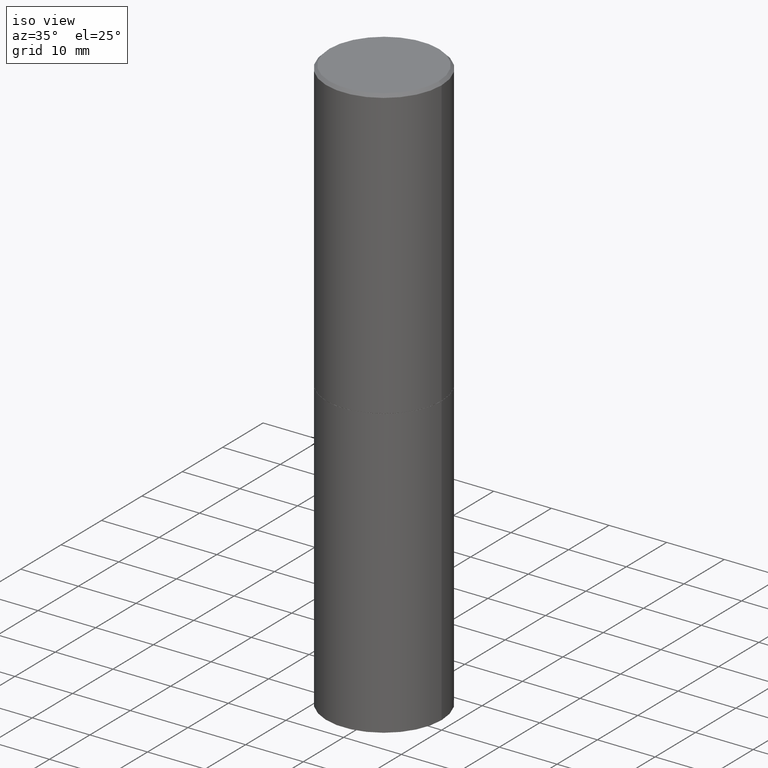
[diagram: clean part render]
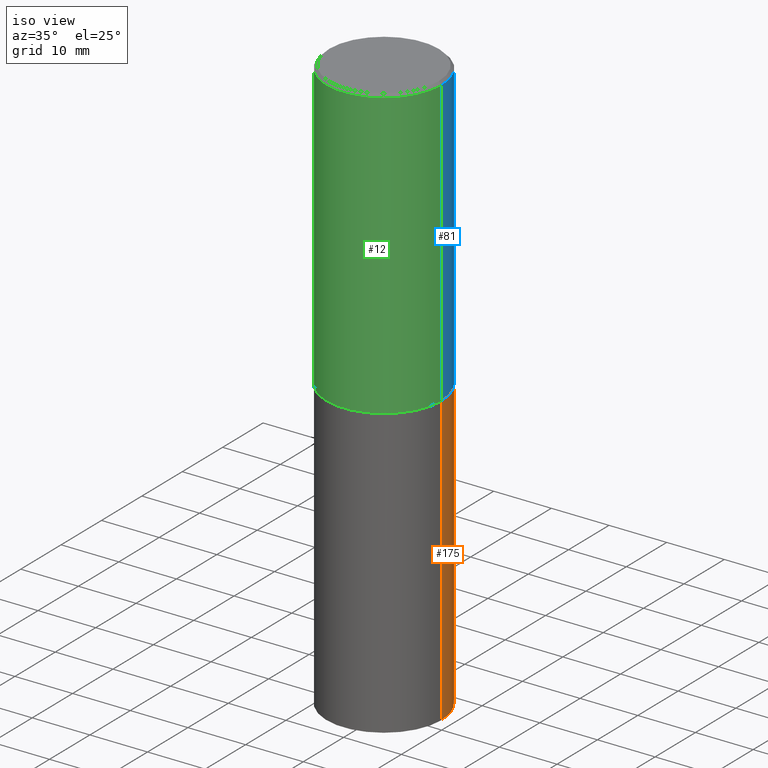
[diagram: same view with three faces highlighted in distinct colors, each labeled with its STEP entity id]
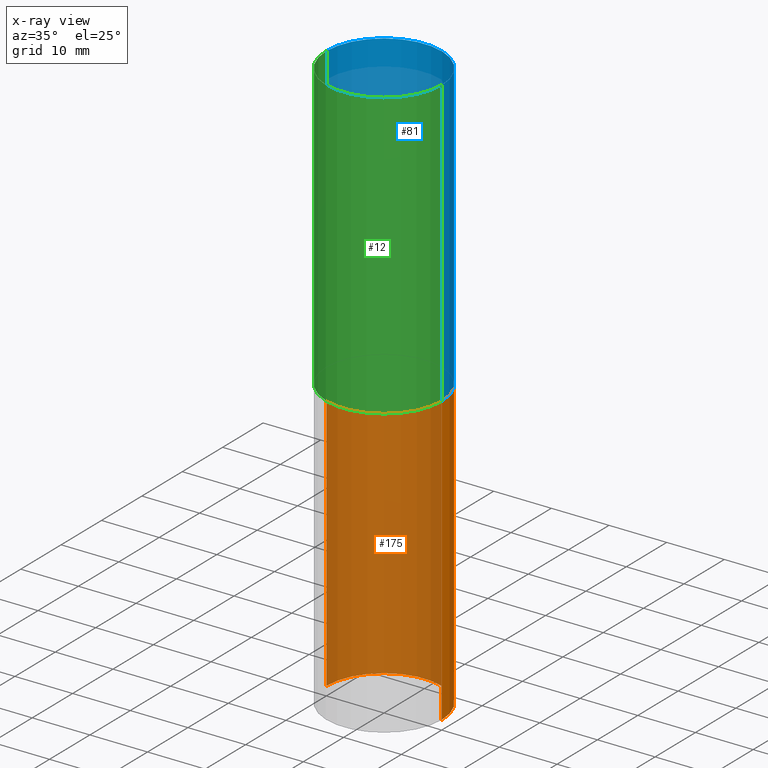
[diagram: x-ray of the same camera — body ghosted, the three highlighted faces saturated]
A machine part, iso view with three faces highlighted in distinct colors.
The next image is the same camera in x-ray (body ghosted, the three faces saturated) — at least one of them is partly hidden behind the body in this view.
Their STEP definitions:

[orange] entity #175 — the highlighted cylindrical surface (partial cylindrical patch) has radius 10 mm, axis along (-0, 0, 1).
#18 = ORIENTED_EDGE ( 'NONE', *, *, #334, .T. ) ;
#28 = AXIS2_PLACEMENT_3D ( 'NONE', #257, #86, #174 ) ;
#36 = CARTESIAN_POINT ( 'NONE',  ( 0.3937000000000000499, -9.622173421717814924E-15, -1.968500000000000139 ) ) ;
#45 = DIRECTION ( 'NONE',  ( -2.445468806185136597E-29, 3.491481338843145583E-15, 1.000000000000000000 ) ) ;
#55 = EDGE_LOOP ( 'NONE', ( #246, #18, #259, #179 ) ) ;
#62 = VERTEX_POINT ( 'NONE', #313 ) ;
#69 = DIRECTION ( 'NONE',  ( -2.445468806185136877E-29, 3.491481338843145188E-15, 1.000000000000000000 ) ) ;
#73 = CIRCLE ( 'NONE', #28, 0.3937000000000000499 ) ;
#86 = DIRECTION ( 'NONE',  ( -2.445468806185136597E-29, 3.491481338843145583E-15, 1.000000000000000000 ) ) ;
#91 = CARTESIAN_POINT ( 'NONE',  ( -0.3937000000000000499, 2.797406750687514786E-15, -1.936584745033356735E-29 ) ) ;
#93 = VERTEX_POINT ( 'NONE', #197 ) ;
#94 = LINE ( 'NONE', #209, #253 ) ;
#95 = AXIS2_PLACEMENT_3D ( 'NONE', #271, #102, #206 ) ;
#102 = DIRECTION ( 'NONE',  ( -2.445468806185136597E-29, 3.491481338843145583E-15, 1.000000000000000000 ) ) ;
#107 = EDGE_CURVE ( 'NONE', #294, #62, #73, .T. ) ;
#122 = VERTEX_POINT ( 'NONE', #36 ) ;
#174 = DIRECTION ( 'NONE',  ( 1.000000000000000000, -6.982962677686267499E-15, 0.000000000000000000 ) ) ;
#175 = ADVANCED_FACE ( 'NONE', ( #177 ), #335, .T. ) ;
#177 = FACE_OUTER_BOUND ( 'NONE', #55, .T. ) ;
#179 = ORIENTED_EDGE ( 'NONE', *, *, #269, .F. ) ;
#197 = CARTESIAN_POINT ( 'NONE',  ( -0.3937000000000000499, -7.512064772581583563E-15, -1.968500000000000139 ) ) ;
#205 = DIRECTION ( 'NONE',  ( -2.445468806185136877E-29, 3.491481338843145188E-15, 1.000000000000000000 ) ) ;
#206 = DIRECTION ( 'NONE',  ( 1.000000000000000000, -6.982962677686265133E-15, 0.000000000000000000 ) ) ;
#209 = CARTESIAN_POINT ( 'NONE',  ( 0.3937000000000000499, -2.749192406205083217E-15, 1.919750796630860172E-29 ) ) ;
#213 = CARTESIAN_POINT ( 'NONE',  ( 0.000000000000000000, 0.000000000000000000, 0.000000000000000000 ) ) ;
#242 = DIRECTION ( 'NONE',  ( 1.000000000000000000, -6.982962677686265922E-15, 4.876176775795935793E-29 ) ) ;
#246 = ORIENTED_EDGE ( 'NONE', *, *, #107, .T. ) ;
#248 = AXIS2_PLACEMENT_3D ( 'NONE', #213, #45, #242 ) ;
#253 = VECTOR ( 'NONE', #69, 39.37007874015748143 ) ;
#257 = CARTESIAN_POINT ( 'NONE',  ( 9.627810689950883669E-29, -1.374596203102546341E-14, -3.937000000000000277 ) ) ;
#259 = ORIENTED_EDGE ( 'NONE', *, *, #277, .F. ) ;
#269 = EDGE_CURVE ( 'NONE', #294, #122, #94, .T. ) ;
#271 = CARTESIAN_POINT ( 'NONE',  ( 4.813905344975441835E-29, -6.872981015512731707E-15, -1.968500000000000139 ) ) ;
#277 = EDGE_CURVE ( 'NONE', #122, #93, #309, .T. ) ;
#288 = CARTESIAN_POINT ( 'NONE',  ( 0.3937000000000000499, -1.649515443723054663E-14, -3.937000000000000277 ) ) ;
#294 = VERTEX_POINT ( 'NONE', #288 ) ;
#309 = CIRCLE ( 'NONE', #95, 0.3937000000000000499 ) ;
#313 = CARTESIAN_POINT ( 'NONE',  ( -0.3937000000000000499, -7.512064772581583563E-15, -3.937000000000000277 ) ) ;
#317 = VECTOR ( 'NONE', #205, 39.37007874015748143 ) ;
#334 = EDGE_CURVE ( 'NONE', #62, #93, #350, .T. ) ;
#335 = CYLINDRICAL_SURFACE ( 'NONE', #248, 0.3937000000000000499 ) ;
#350 = LINE ( 'NONE', #91, #317 ) ;

[blue] entity #81 — the highlighted cylindrical surface (partial cylindrical patch) has radius 10 mm, axis along (-0, 0, 1).
#3 = ORIENTED_EDGE ( 'NONE', *, *, #325, .F. ) ;
#10 = LINE ( 'NONE', #59, #39 ) ;
#14 = ORIENTED_EDGE ( 'NONE', *, *, #145, .T. ) ;
#26 = ORIENTED_EDGE ( 'NONE', *, *, #322, .F. ) ;
#32 = ORIENTED_EDGE ( 'NONE', *, *, #211, .T. ) ;
#39 = VECTOR ( 'NONE', #290, 39.37007874015748143 ) ;
#50 = DIRECTION ( 'NONE',  ( 1.000000000000000000, -6.982962677686265922E-15, 0.000000000000000000 ) ) ;
#56 = DIRECTION ( 'NONE',  ( -2.445468806185136597E-29, 3.491481338843145583E-15, 1.000000000000000000 ) ) ;
#59 = CARTESIAN_POINT ( 'NONE',  ( 0.3936999999999999389, -2.749192406205082822E-15, 1.919750796630859611E-29 ) ) ;
#80 = AXIS2_PLACEMENT_3D ( 'NONE', #303, #297, #50 ) ;
#81 = ADVANCED_FACE ( 'NONE', ( #195 ), #85, .T. ) ;
#85 = CYLINDRICAL_SURFACE ( 'NONE', #310, 0.3936999999999999389 ) ;
#90 = CIRCLE ( 'NONE', #80, 0.3937000000000001609 ) ;
#96 = AXIS2_PLACEMENT_3D ( 'NONE', #356, #142, #230 ) ;
#97 = VERTEX_POINT ( 'NONE', #319 ) ;
#116 = VECTOR ( 'NONE', #203, 39.37007874015748143 ) ;
#142 = DIRECTION ( 'NONE',  ( -2.445468806185136597E-29, 3.491481338843145583E-15, 1.000000000000000000 ) ) ;
#145 = EDGE_CURVE ( 'NONE', #291, #276, #199, .T. ) ;
#172 = CIRCLE ( 'NONE', #96, 0.3936999999999997724 ) ;
#188 = VERTEX_POINT ( 'NONE', #338 ) ;
#195 = FACE_OUTER_BOUND ( 'NONE', #326, .T. ) ;
#199 = LINE ( 'NONE', #354, #116 ) ;
#203 = DIRECTION ( 'NONE',  ( -2.445468806185136877E-29, 3.491481338843145188E-15, 1.000000000000000000 ) ) ;
#211 = EDGE_CURVE ( 'NONE', #188, #291, #90, .T. ) ;
#230 = DIRECTION ( 'NONE',  ( 1.000000000000000000, -6.982962677686266711E-15, 0.000000000000000000 ) ) ;
#234 = CARTESIAN_POINT ( 'NONE',  ( -0.3937000000000001609, -6.722528297878588461E-16, -1.967500000000000027 ) ) ;
#276 = VERTEX_POINT ( 'NONE', #336 ) ;
#281 = DIRECTION ( 'NONE',  ( 1.000000000000000000, -6.982962677686266711E-15, 4.876176775795935793E-29 ) ) ;
#290 = DIRECTION ( 'NONE',  ( -2.445468806185136877E-29, 3.491481338843145188E-15, 1.000000000000000000 ) ) ;
#291 = VERTEX_POINT ( 'NONE', #234 ) ;
#297 = DIRECTION ( 'NONE',  ( -2.445468806185136597E-29, 3.491481338843145583E-15, 1.000000000000000000 ) ) ;
#303 = CARTESIAN_POINT ( 'NONE',  ( 4.811459876169256232E-29, -6.869489534173888700E-15, -1.967500000000000027 ) ) ;
#310 = AXIS2_PLACEMENT_3D ( 'NONE', #315, #56, #281 ) ;
#315 = CARTESIAN_POINT ( 'NONE',  ( 0.000000000000000000, 0.000000000000000000, 0.000000000000000000 ) ) ;
#319 = CARTESIAN_POINT ( 'NONE',  ( 0.3936999999999997724, -2.770807688499513762E-15, -0.02000000000000008715 ) ) ;
#322 = EDGE_CURVE ( 'NONE', #188, #97, #10, .T. ) ;
#325 = EDGE_CURVE ( 'NONE', #97, #276, #172, .T. ) ;
#326 = EDGE_LOOP ( 'NONE', ( #32, #14, #3, #26 ) ) ;
#336 = CARTESIAN_POINT ( 'NONE',  ( -0.3936999999999997724, 2.679362779428217946E-15, -0.02000000000000008715 ) ) ;
#338 = CARTESIAN_POINT ( 'NONE',  ( 0.3937000000000001609, -9.618681940378971917E-15, -1.967500000000000027 ) ) ;
#354 = CARTESIAN_POINT ( 'NONE',  ( -0.3936999999999999389, 2.797406750687513998E-15, -1.936584745033356455E-29 ) ) ;
#356 = CARTESIAN_POINT ( 'NONE',  ( 4.890937612370294178E-31, -6.982962677686321191E-17, -0.02000000000000008715 ) ) ;

[green] entity #12 — the highlighted cylindrical surface (partial cylindrical patch) has radius 10 mm, axis along (-0, 0, 1).
#7 = CYLINDRICAL_SURFACE ( 'NONE', #267, 0.3936999999999999389 ) ;
#10 = LINE ( 'NONE', #59, #39 ) ;
#11 = DIRECTION ( 'NONE',  ( -2.445468806185136597E-29, 3.491481338843145583E-15, 1.000000000000000000 ) ) ;
#12 = ADVANCED_FACE ( 'NONE', ( #140 ), #7, .T. ) ;
#19 = DIRECTION ( 'NONE',  ( -2.445468806185136597E-29, 3.491481338843145583E-15, 1.000000000000000000 ) ) ;
#39 = VECTOR ( 'NONE', #290, 39.37007874015748143 ) ;
#59 = CARTESIAN_POINT ( 'NONE',  ( 0.3936999999999999389, -2.749192406205082822E-15, 1.919750796630859611E-29 ) ) ;
#84 = ORIENTED_EDGE ( 'NONE', *, *, #231, .F. ) ;
#97 = VERTEX_POINT ( 'NONE', #319 ) ;
#108 = EDGE_LOOP ( 'NONE', ( #165, #333, #273, #84 ) ) ;
#115 = DIRECTION ( 'NONE',  ( 1.000000000000000000, -6.982962677686265922E-15, 0.000000000000000000 ) ) ;
#116 = VECTOR ( 'NONE', #203, 39.37007874015748143 ) ;
#140 = FACE_OUTER_BOUND ( 'NONE', #108, .T. ) ;
#141 = AXIS2_PLACEMENT_3D ( 'NONE', #321, #11, #115 ) ;
#145 = EDGE_CURVE ( 'NONE', #291, #276, #199, .T. ) ;
#165 = ORIENTED_EDGE ( 'NONE', *, *, #145, .F. ) ;
#168 = CARTESIAN_POINT ( 'NONE',  ( 0.000000000000000000, 0.000000000000000000, 0.000000000000000000 ) ) ;
#170 = CIRCLE ( 'NONE', #141, 0.3937000000000001609 ) ;
#187 = CARTESIAN_POINT ( 'NONE',  ( 4.890937612370294178E-31, -6.982962677686321191E-17, -0.02000000000000008715 ) ) ;
#188 = VERTEX_POINT ( 'NONE', #338 ) ;
#199 = LINE ( 'NONE', #354, #116 ) ;
#203 = DIRECTION ( 'NONE',  ( -2.445468806185136877E-29, 3.491481338843145188E-15, 1.000000000000000000 ) ) ;
#221 = DIRECTION ( 'NONE',  ( -2.445468806185136597E-29, 3.491481338843145583E-15, 1.000000000000000000 ) ) ;
#225 = AXIS2_PLACEMENT_3D ( 'NONE', #187, #19, #240 ) ;
#231 = EDGE_CURVE ( 'NONE', #276, #97, #285, .T. ) ;
#234 = CARTESIAN_POINT ( 'NONE',  ( -0.3937000000000001609, -6.722528297878588461E-16, -1.967500000000000027 ) ) ;
#240 = DIRECTION ( 'NONE',  ( 1.000000000000000000, -6.982962677686266711E-15, 0.000000000000000000 ) ) ;
#267 = AXIS2_PLACEMENT_3D ( 'NONE', #168, #221, #278 ) ;
#273 = ORIENTED_EDGE ( 'NONE', *, *, #322, .T. ) ;
#276 = VERTEX_POINT ( 'NONE', #336 ) ;
#278 = DIRECTION ( 'NONE',  ( 1.000000000000000000, -6.982962677686266711E-15, 4.876176775795935793E-29 ) ) ;
#282 = EDGE_CURVE ( 'NONE', #291, #188, #170, .T. ) ;
#285 = CIRCLE ( 'NONE', #225, 0.3936999999999997724 ) ;
#290 = DIRECTION ( 'NONE',  ( -2.445468806185136877E-29, 3.491481338843145188E-15, 1.000000000000000000 ) ) ;
#291 = VERTEX_POINT ( 'NONE', #234 ) ;
#319 = CARTESIAN_POINT ( 'NONE',  ( 0.3936999999999997724, -2.770807688499513762E-15, -0.02000000000000008715 ) ) ;
#321 = CARTESIAN_POINT ( 'NONE',  ( 4.811459876169256232E-29, -6.869489534173888700E-15, -1.967500000000000027 ) ) ;
#322 = EDGE_CURVE ( 'NONE', #188, #97, #10, .T. ) ;
#333 = ORIENTED_EDGE ( 'NONE', *, *, #282, .T. ) ;
#336 = CARTESIAN_POINT ( 'NONE',  ( -0.3936999999999997724, 2.679362779428217946E-15, -0.02000000000000008715 ) ) ;
#338 = CARTESIAN_POINT ( 'NONE',  ( 0.3937000000000001609, -9.618681940378971917E-15, -1.967500000000000027 ) ) ;
#354 = CARTESIAN_POINT ( 'NONE',  ( -0.3936999999999999389, 2.797406750687513998E-15, -1.936584745033356455E-29 ) ) ;